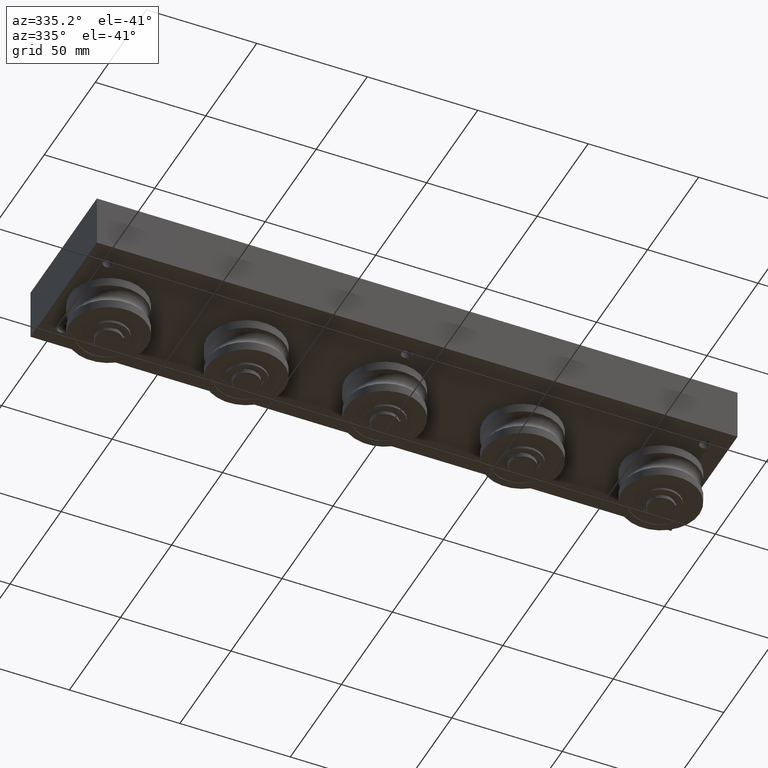
[diagram: clean part render]
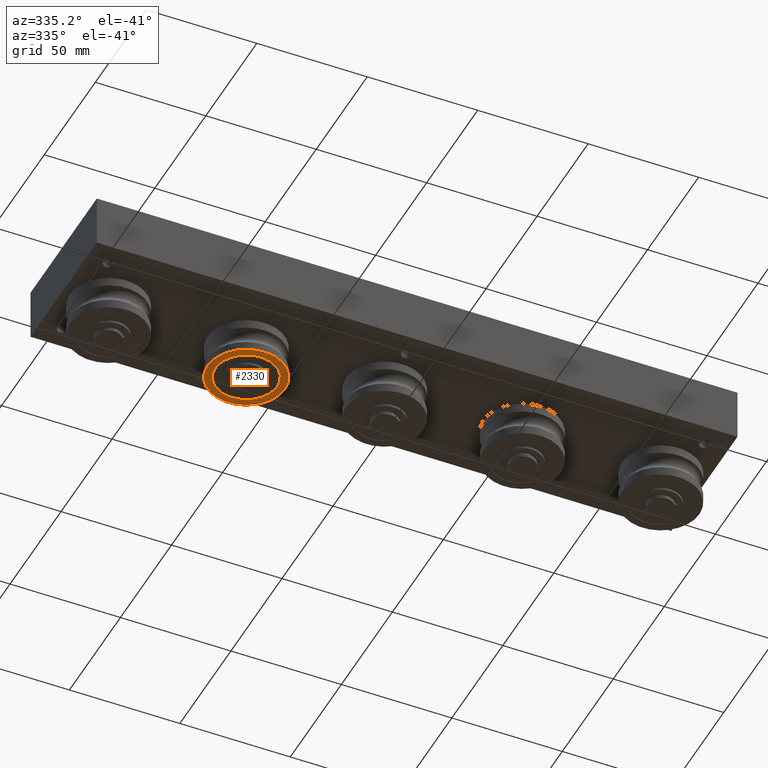
[diagram: same view with one face highlighted and labeled with its STEP entity id]
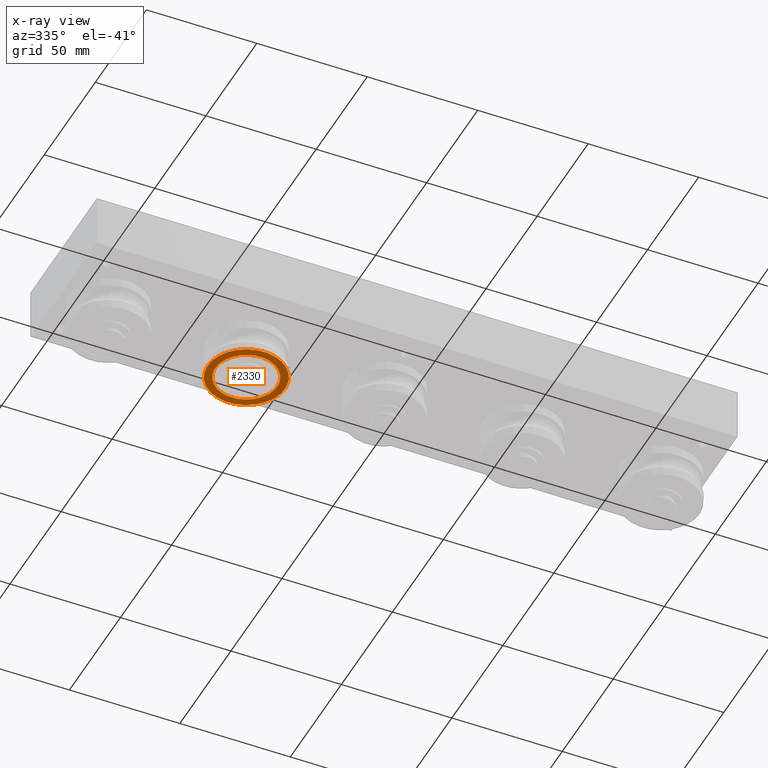
[diagram: x-ray of the same camera — body ghosted, the highlighted face saturated]
A machine part, auxiliary view. The second image highlights one B-rep face of the part: STEP entity #2330.
The next image is the same camera in x-ray: the body ghosted, the highlighted face saturated — about 0% of this face is hidden behind the body in this view.
In plain terms, the highlighted planar face has unit normal (0, -0, -1).
Its self-contained STEP definition (entity closure, byte-faithful):
#224=FACE_BOUND('',#565,.T.);
#273=PLANE('',#2767);
#377=FACE_OUTER_BOUND('',#564,.T.);
#564=EDGE_LOOP('',(#1906));
#565=EDGE_LOOP('',(#1907));
#997=CIRCLE('',#2757,17.5);
#1004=CIRCLE('',#2768,14.);
#1174=VERTEX_POINT('',#4038);
#1181=VERTEX_POINT('',#4058);
#1427=EDGE_CURVE('',#1174,#1174,#997,.T.);
#1436=EDGE_CURVE('',#1181,#1181,#1004,.T.);
#1906=ORIENTED_EDGE('',*,*,#1427,.T.);
#1907=ORIENTED_EDGE('',*,*,#1436,.F.);
#2330=ADVANCED_FACE('',(#377,#224),#273,.T.);
#2757=AXIS2_PLACEMENT_3D('',#4039,#3316,#3317);
#2767=AXIS2_PLACEMENT_3D('',#4057,#3338,#3339);
#2768=AXIS2_PLACEMENT_3D('',#4059,#3340,#3341);
#3316=DIRECTION('center_axis',(0.,0.,1.));
#3317=DIRECTION('ref_axis',(1.,0.,0.));
#3338=DIRECTION('center_axis',(0.,0.,1.));
#3339=DIRECTION('ref_axis',(1.,0.,0.));
#3340=DIRECTION('center_axis',(0.,0.,1.));
#3341=DIRECTION('ref_axis',(1.,0.,0.));
#4038=CARTESIAN_POINT('',(-17.5,0.,0.));
#4039=CARTESIAN_POINT('Origin',(0.,0.,0.));
#4057=CARTESIAN_POINT('Origin',(-21.0000005112452,-21.000000511245,0.));
#4058=CARTESIAN_POINT('',(-14.,0.,0.));
#4059=CARTESIAN_POINT('Origin',(0.,0.,0.));